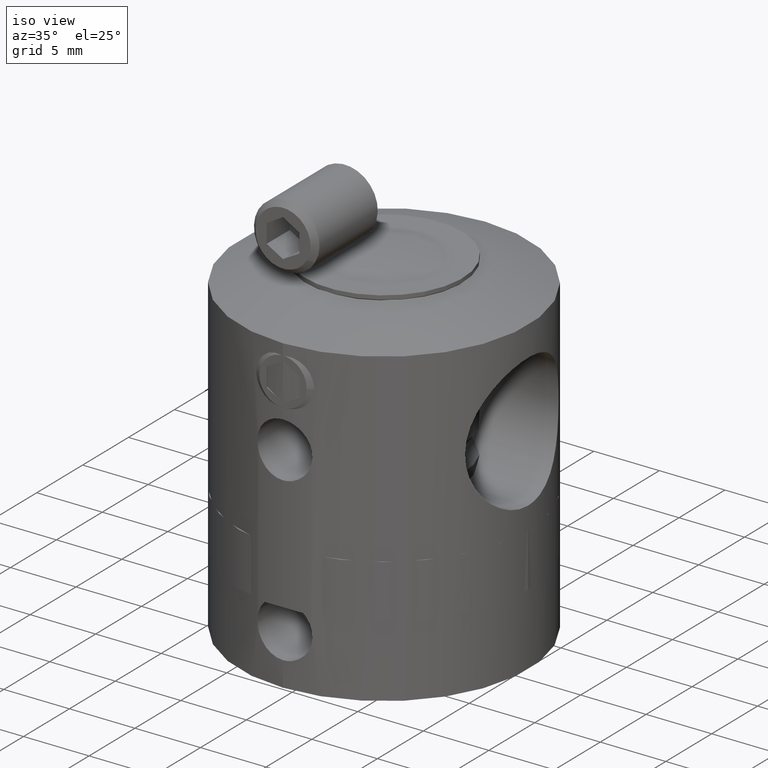
[diagram: clean part render]
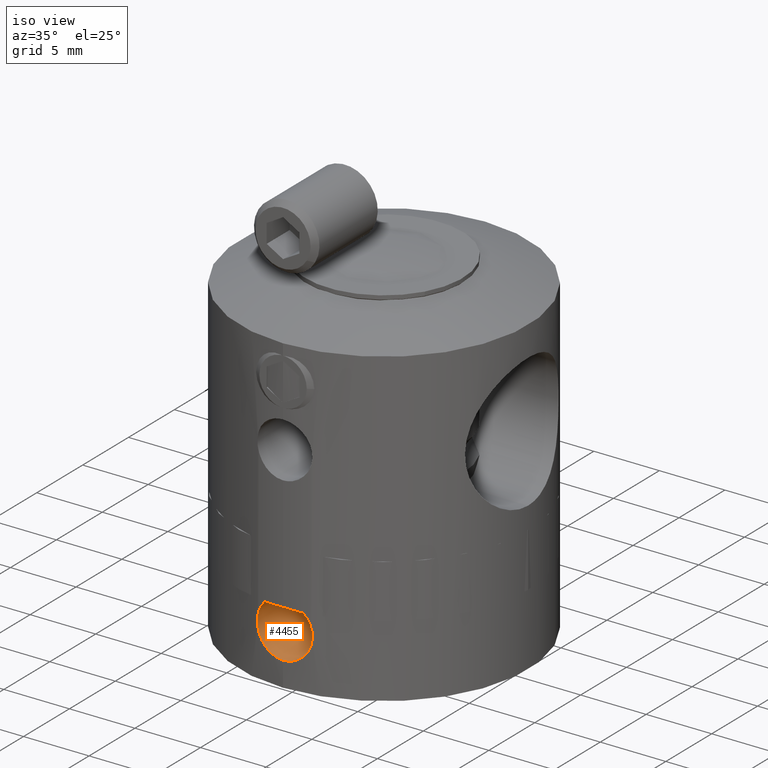
[diagram: same view with one face highlighted and labeled with its STEP entity id]
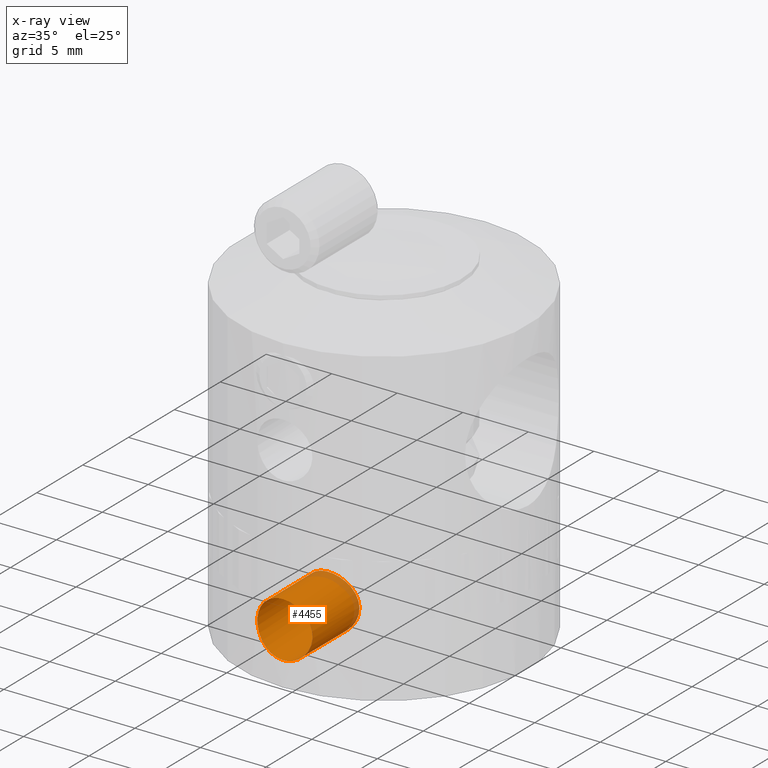
[diagram: x-ray of the same camera — body ghosted, the highlighted face saturated]
A machine part, iso view. The second image highlights one B-rep face of the part: STEP entity #4455.
The next image is the same camera in x-ray: the body ghosted, the highlighted face saturated — about 9% of this face is hidden behind the body in this view.
In plain terms, the highlighted cylindrical surface (bore or boss wall) has radius 2.1 mm, axis along (-0, -1, -0).
Its self-contained STEP definition (entity closure, byte-faithful):
#53 = CARTESIAN_POINT ( 'NONE',  ( 0.1390778096618671689, -11.00000000000000355, -11.10000000000000142 ) ) ;
#86 = AXIS2_PLACEMENT_3D ( 'NONE', #2651, #2634, #3478 ) ;
#223 = CARTESIAN_POINT ( 'NONE',  ( 1.582514419226412228, -10.88600606640208035, -10.38718783353529673 ) ) ;
#242 = CARTESIAN_POINT ( 'NONE',  ( 1.388236100762571201, -5.889415680565724287, -7.418407371126505723 ) ) ;
#248 = CARTESIAN_POINT ( 'NONE',  ( -1.821864279235781092, -10.84835111419837617, -7.946684534337975947 ) ) ;
#260 = CARTESIAN_POINT ( 'NONE',  ( -0.1370078424113408966, -6.050018272139330300, -6.899947358833300015 ) ) ;
#330 = CARTESIAN_POINT ( 'NONE',  ( 2.033263212878624770, -10.81048461628543755, -9.542819864721787226 ) ) ;
#603 = VERTEX_POINT ( 'NONE', #1763 ) ;
#646 = CARTESIAN_POINT ( 'NONE',  ( 1.282722272704272193, -5.913591182268109314, -10.66834261661130689 ) ) ;
#670 = CARTESIAN_POINT ( 'NONE',  ( -0.9319663072103629986, -10.96118774137462815, -7.113117520548483341 ) ) ;
#681 = CARTESIAN_POINT ( 'NONE',  ( -0.2759941719176380870, -6.045243525726740508, -6.913585288518047989 ) ) ;
#698 = CARTESIAN_POINT ( 'NONE',  ( 0.5471799696909567245, -6.026723109777710974, -11.03212607876413465 ) ) ;
#704 = CARTESIAN_POINT ( 'NONE',  ( -0.6781376468636769461, -10.97981628967169243, -10.99225057744506806 ) ) ;
#714 = CARTESIAN_POINT ( 'NONE',  ( -2.100002776509584113, -5.673842466852675237, -8.861644933711625427 ) ) ;
#720 = CARTESIAN_POINT ( 'NONE',  ( -0.2757686476963308042, -10.99736528176723205, -11.08632082349912729 ) ) ;
#729 = CARTESIAN_POINT ( 'NONE',  ( -1.833356115717839074, -5.766598546717018436, -10.06010383873960734 ) ) ;
#754 = CARTESIAN_POINT ( 'NONE',  ( -1.387985884028859696, -5.889482939333429812, -7.418128151566114603 ) ) ;
#867 = B_SPLINE_CURVE_WITH_KNOTS ( 'NONE', 3,
 ( #5302, #5287, #720, #3213, #704, #2781, #3655, #4880, #4857, #1527, #1599, #1120, #4441, #1564, #2029, #1161, #5325, #2802, #248, #4927, #3638, #4103, #4041, #4078, #670, #1104, #1133, #2832, #4058, #4457, #1970, #2435, #3594, #3673, #2370, #4475, #4912, #4895, #1580, #2406, #4500, #2004, #1179, #330, #5081, #2844, #3665, #4089, #223, #2083, #2999, #4618, #2517, #2126, #53, #2579 ),
 .UNSPECIFIED., .T., .F.,
 ( 4, 2, 2, 2, 2, 2, 2, 2, 2, 2, 2, 2, 2, 2, 2, 2, 2, 2, 2, 2, 2, 2, 2, 2, 2, 2, 2, 4 ),
 ( 0.000000000000000000, 0.0004112398612379134888, 0.0008224797224758267607, 0.001233719583713739762, 0.001644959444951652654, 0.002467439167427479089, 0.003289918889903304874, 0.003701158751141219935, 0.004112398612379135864, 0.004523638473617050924, 0.004934878334854965118, 0.005346118196092881046, 0.005757358057330795240, 0.006168597918568711168, 0.006579837779806626229, 0.007402317502282455483, 0.007813557363520372279, 0.008224797224758285605, 0.008636037085996200666, 0.009047276947234115727, 0.009869756669709951052, 0.01028099653094787305, 0.01069223639218579332, 0.01110347625342371358, 0.01151471611466163385, 0.01233719583713747785, 0.01274843569837539811, 0.01315967555961331664 ),
 .UNSPECIFIED. ) ;
#1077 = CARTESIAN_POINT ( 'NONE',  ( 2.086298412965085891, -5.678969576372753458, -9.276648808254051914 ) ) ;
#1099 = CARTESIAN_POINT ( 'NONE',  ( 0.9337387309442389816, -5.978870465411910473, -7.114032744933029839 ) ) ;
#1104 = CARTESIAN_POINT ( 'NONE',  ( -0.6781069570240135791, -10.97981643080941083, -7.007750607009238131 ) ) ;
#1120 = CARTESIAN_POINT ( 'NONE',  ( -2.044350993406146788, -10.80888394006649733, -9.552623370116647195 ) ) ;
#1133 = CARTESIAN_POINT ( 'NONE',  ( -0.5472116004057776539, -10.98720989896580669, -6.967886480110341729 ) ) ;
#1146 = CARTESIAN_POINT ( 'NONE',  ( -1.282838274904412490, -5.913557712218290519, -7.331785559734434798 ) ) ;
#1161 = CARTESIAN_POINT ( 'NONE',  ( -2.032659403802354436, -10.81059865162793621, -8.454853891728369319 ) ) ;
#1171 = CARTESIAN_POINT ( 'NONE',  ( -2.031790601906988236, -5.698697821966189458, -8.451593586440516503 ) ) ;
#1179 = CARTESIAN_POINT ( 'NONE',  ( 2.086595700918373542, -10.80031737092473421, -9.273735418408087128 ) ) ;
#1185 = CARTESIAN_POINT ( 'NONE',  ( -0.9348990817558912036, -5.978705317257419161, -10.88545226405776489 ) ) ;
#1504 = CARTESIAN_POINT ( 'NONE',  ( 1.055254178886850136, -5.958387006382904083, -10.82076416189327794 ) ) ;
#1519 = CARTESIAN_POINT ( 'NONE',  ( 2.086199626509825489, -5.679005098974669430, -8.722931967104218032 ) ) ;
#1527 = CARTESIAN_POINT ( 'NONE',  ( -1.678338565524258641, -10.87295724076965264, -10.29145425403354608 ) ) ;
#1540 = CARTESIAN_POINT ( 'NONE',  ( 2.031906570704638870, -5.698657052783162591, -9.548207368589965327 ) ) ;
#1564 = CARTESIAN_POINT ( 'NONE',  ( -2.100080576060141979, -10.79766926613581823, -8.863934974792822885 ) ) ;
#1572 = CARTESIAN_POINT ( 'NONE',  ( -1.056207286875700424, -5.958209884054677552, -7.179824287212644762 ) ) ;
#1580 = CARTESIAN_POINT ( 'NONE',  ( 1.885922255304093076, -10.83725952041489293, -8.066019305492174496 ) ) ;
#1589 = CARTESIAN_POINT ( 'NONE',  ( -2.099997222644936823, -5.673844522446161776, -9.138439339059265976 ) ) ;
#1599 = CARTESIAN_POINT ( 'NONE',  ( -1.834681010053395678, -10.84644128760293569, -10.05769048629040796 ) ) ;
#1612 = CARTESIAN_POINT ( 'NONE',  ( -1.677628477259460515, -5.816140520493007671, -10.29216412684446702 ) ) ;
#1614 = EDGE_LOOP ( 'NONE', ( #5283 ) ) ;
#1763 = CARTESIAN_POINT ( 'NONE',  ( 0.000000000000000000, -6.049999999999999822, -11.09999999999999609 ) ) ;
#1909 = CARTESIAN_POINT ( 'NONE',  ( 2.099901838711680124, -5.673879825887594208, -9.139667955912132769 ) ) ;
#1926 = CARTESIAN_POINT ( 'NONE',  ( 2.100097112875726868, -5.673807551136180294, -8.863299646582754932 ) ) ;
#1946 = CARTESIAN_POINT ( 'NONE',  ( 1.677515665356957619, -5.816156680805213419, -10.29218480352837695 ) ) ;
#1964 = CARTESIAN_POINT ( 'NONE',  ( -0.5484315143079885324, -6.026637946847929861, -6.968123526063984663 ) ) ;
#1970 = CARTESIAN_POINT ( 'NONE',  ( 0.5505417721006465870, -10.98913941872515920, -6.955053806371497060 ) ) ;
#1994 = CARTESIAN_POINT ( 'NONE',  ( -1.832674874622926442, -5.766831447283050416, -7.938154285827224044 ) ) ;
#2004 = CARTESIAN_POINT ( 'NONE',  ( 2.100101276507924997, -10.79766524018844898, -9.137153442652046209 ) ) ;
#2020 = CARTESIAN_POINT ( 'NONE',  ( -0.1399094874859273530, -6.049999999999998934, -11.09999999999999787 ) ) ;
#2029 = CARTESIAN_POINT ( 'NONE',  ( -2.086371845620103915, -10.80036110415988482, -8.724425957257206932 ) ) ;
#2037 = CARTESIAN_POINT ( 'NONE',  ( -0.6806531321449275085, -6.012958080460188093, -10.99140097589859444 ) ) ;
#2083 = CARTESIAN_POINT ( 'NONE',  ( 1.293096815573841152, -10.92546660261073121, -10.67704159633094463 ) ) ;
#2126 = CARTESIAN_POINT ( 'NONE',  ( 0.2763807230148072058, -10.99736402501771515, -11.08631854803060968 ) ) ;
#2348 = CARTESIAN_POINT ( 'NONE',  ( 1.992076325838970208, -5.712904946180972665, -8.321180947084144464 ) ) ;
#2370 = CARTESIAN_POINT ( 'NONE',  ( 1.386736755965818357, -10.91267702308485887, -7.417060461664108928 ) ) ;
#2378 = CARTESIAN_POINT ( 'NONE',  ( -0.6798199956223249796, -6.013045120364453489, -7.008341673257475257 ) ) ;
#2406 = CARTESIAN_POINT ( 'NONE',  ( 2.044856290180034897, -10.80879962882139722, -8.448045730545238996 ) ) ;
#2435 = CARTESIAN_POINT ( 'NONE',  ( 0.9298327460409486767, -10.96136311852415801, -7.112107958911355610 ) ) ;
#2445 = CARTESIAN_POINT ( 'NONE',  ( -2.086446433802004563, -5.678914961500180603, -9.275580519989469863 ) ) ;
#2517 = CARTESIAN_POINT ( 'NONE',  ( 0.5474969020630485739, -10.98720387291686862, -11.03208231382050641 ) ) ;
#2579 = CARTESIAN_POINT ( 'NONE',  ( -5.421010862427522170E-17, -11.00000000000000000, -11.09999999999999787 ) ) ;
#2634 = DIRECTION ( 'NONE',  ( -0.000000000000000000, -1.000000000000000000, -0.000000000000000000 ) ) ;
#2651 = CARTESIAN_POINT ( 'NONE',  ( 0.000000000000000000, -10.99999999999999645, -9.000000000000003553 ) ) ;
#2752 = EDGE_CURVE ( 'NONE', #603, #603, #5034, .T. ) ;
#2756 = CARTESIAN_POINT ( 'NONE',  ( 1.885730099252477254, -5.748884500913227669, -8.065556107974956035 ) ) ;
#2781 = CARTESIAN_POINT ( 'NONE',  ( -0.9322983872529648774, -10.96116125874258174, -10.88673070377028118 ) ) ;
#2802 = CARTESIAN_POINT ( 'NONE',  ( -1.887465525486915929, -10.83698959357260527, -8.069159390277093280 ) ) ;
#2832 = CARTESIAN_POINT ( 'NONE',  ( -0.2774242944193053839, -10.99732956950990115, -6.913864420944086042 ) ) ;
#2844 = CARTESIAN_POINT ( 'NONE',  ( 1.887604345443003817, -10.83696457773361743, -9.930492876428047566 ) ) ;
#2866 = CARTESIAN_POINT ( 'NONE',  ( -2.846030702774449139E-16, -6.049999999999999822, -11.09999999999999787 ) ) ;
#2965 = FACE_OUTER_BOUND ( 'NONE', #4438, .T. ) ;
#2999 = CARTESIAN_POINT ( 'NONE',  ( 1.059417076819560322, -10.95179245714164651, -10.83370096287937479 ) ) ;
#3149 = CARTESIAN_POINT ( 'NONE',  ( 0.6811580974801476618, -6.012896895511600448, -10.99121495824429040 ) ) ;
#3150 = FACE_OUTER_BOUND ( 'NONE', #1614, .T. ) ;
#3169 = CARTESIAN_POINT ( 'NONE',  ( 1.056540751299541947, -5.958152591912580398, -7.180007939861434707 ) ) ;
#3213 = CARTESIAN_POINT ( 'NONE',  ( -0.5445907593099171828, -10.98733418043456922, -11.03278228802117056 ) ) ;
#3225 = CARTESIAN_POINT ( 'NONE',  ( -2.085968176298856669, -5.679090304225507424, -8.721325616715200013 ) ) ;
#3246 = CARTESIAN_POINT ( 'NONE',  ( -1.281667734744786236, -5.913812107055512968, -10.66911211653557601 ) ) ;
#3263 = CARTESIAN_POINT ( 'NONE',  ( -0.9334016992415116176, -5.978932021175665135, -7.113834740860747630 ) ) ;
#3478 = DIRECTION ( 'NONE',  ( 0.000000000000000000, 0.000000000000000000, -1.000000000000000000 ) ) ;
#3572 = CARTESIAN_POINT ( 'NONE',  ( 1.833375222520310599, -5.766588150094817067, -10.05988853332625332 ) ) ;
#3589 = CARTESIAN_POINT ( 'NONE',  ( 1.581308756655631864, -5.840537573381246794, -7.611440555362619875 ) ) ;
#3594 = CARTESIAN_POINT ( 'NONE',  ( 1.052429674837027873, -10.95014267461733937, -7.177551404401405932 ) ) ;
#3625 = CARTESIAN_POINT ( 'NONE',  ( 1.283353766588672729, -5.913447706495243317, -7.332171301390130402 ) ) ;
#3638 = CARTESIAN_POINT ( 'NONE',  ( -1.582902319642925049, -10.88596003962311975, -7.613101617243329677 ) ) ;
#3648 = CARTESIAN_POINT ( 'NONE',  ( -2.032141678610742019, -5.698572984452232149, -9.547360523033843194 ) ) ;
#3655 = CARTESIAN_POINT ( 'NONE',  ( -1.052791956378938742, -10.95010395737945252, -10.82220585969553284 ) ) ;
#3665 = CARTESIAN_POINT ( 'NONE',  ( 1.823215479922152271, -10.84812657183626783, -10.05107818475415904 ) ) ;
#3673 = CARTESIAN_POINT ( 'NONE',  ( 1.281199630984558802, -10.92573843364916009, -7.330432807688803010 ) ) ;
#3684 = CARTESIAN_POINT ( 'NONE',  ( -1.054968530237155866, -5.958429929104765321, -10.82089231973254329 ) ) ;
#3856 = EDGE_CURVE ( 'NONE', #4007, #4007, #867, .T. ) ;
#4007 = VERTEX_POINT ( 'NONE', #4290 ) ;
#4012 = CARTESIAN_POINT ( 'NONE',  ( 0.2777502533098673565, -6.045159907950944600, -6.913826621524063576 ) ) ;
#4041 = CARTESIAN_POINT ( 'NONE',  ( -1.281990447053926729, -10.92563686889392649, -7.331115581257310332 ) ) ;
#4052 = CARTESIAN_POINT ( 'NONE',  ( 1.669091256392895239, -5.815745814966070348, -7.718326810072279720 ) ) ;
#4058 = CARTESIAN_POINT ( 'NONE',  ( -0.1380551056559362610, -10.99998945361097569, -6.900055242994412197 ) ) ;
#4067 = CARTESIAN_POINT ( 'NONE',  ( -1.679013435041563085, -5.815794899478619939, -7.709183467151893510 ) ) ;
#4073 = CYLINDRICAL_SURFACE ( 'NONE', #86, 2.099999999999992539 ) ;
#4078 = CARTESIAN_POINT ( 'NONE',  ( -1.054892582810820212, -10.94989690070195998, -7.179045209734632671 ) ) ;
#4089 = CARTESIAN_POINT ( 'NONE',  ( 1.670711584421387341, -10.87265779864739201, -10.27968857085388166 ) ) ;
#4103 = CARTESIAN_POINT ( 'NONE',  ( -1.387671354983934568, -10.91256495734889675, -7.417775272541513587 ) ) ;
#4113 = CARTESIAN_POINT ( 'NONE',  ( -1.991284098162775074, -5.713175649488976049, -9.680838702918435956 ) ) ;
#4290 = CARTESIAN_POINT ( 'NONE',  ( 0.000000000000000000, -10.99999999999999822, -11.09999999999999609 ) ) ;
#4395 = CARTESIAN_POINT ( 'NONE',  ( 1.389485210169927321, -5.889112003224027170, -10.58043694724463357 ) ) ;
#4435 = CARTESIAN_POINT ( 'NONE',  ( 1.990986049021030047, -5.713278432952918706, -9.681638947691940444 ) ) ;
#4438 = EDGE_LOOP ( 'NONE', ( #4626 ) ) ;
#4441 = CARTESIAN_POINT ( 'NONE',  ( -2.099837753199914836, -10.79771649180664284, -9.275843938405992972 ) ) ;
#4450 = CARTESIAN_POINT ( 'NONE',  ( 0.5499007699519290471, -6.026500863612104020, -6.968529175330919756 ) ) ;
#4455 = ADVANCED_FACE ( 'NONE', ( #3150, #2965 ), #4073, .F. ) ;
#4457 = CARTESIAN_POINT ( 'NONE',  ( 0.2735815360057495260, -11.00002099589624116, -6.899890021487316005 ) ) ;
#4467 = CARTESIAN_POINT ( 'NONE',  ( 0.9350300702962209831, -5.978680807457250168, -10.88537320744207904 ) ) ;
#4475 = CARTESIAN_POINT ( 'NONE',  ( 1.580486696390908996, -10.88630426008028351, -7.610468346922246496 ) ) ;
#4500 = CARTESIAN_POINT ( 'NONE',  ( 2.099795748563274334, -10.79772466112062546, -8.721067090500651986 ) ) ;
#4510 = CARTESIAN_POINT ( 'NONE',  ( -0.2772861503185984344, -6.045152451168054775, -11.08614745265201762 ) ) ;
#4528 = CARTESIAN_POINT ( 'NONE',  ( -1.991803295099964233, -5.712998789426672275, -8.320461176367230038 ) ) ;
#4618 = CARTESIAN_POINT ( 'NONE',  ( 0.6806038088607760939, -10.97965432502793348, -10.99135240385638923 ) ) ;
#4626 = ORIENTED_EDGE ( 'NONE', *, *, #3856, .F. ) ;
#4816 = CARTESIAN_POINT ( 'NONE',  ( -2.846030702774449139E-16, -6.049999999999999822, -11.09999999999999787 ) ) ;
#4830 = CARTESIAN_POINT ( 'NONE',  ( 2.032092219697879010, -5.698590089353100296, -8.452645647550122376 ) ) ;
#4848 = CARTESIAN_POINT ( 'NONE',  ( 0.1386168427396119451, -6.049981620882074473, -6.900052949366974886 ) ) ;
#4857 = CARTESIAN_POINT ( 'NONE',  ( -1.388537688308395968, -10.91244555373267389, -10.58133857723259474 ) ) ;
#4868 = CARTESIAN_POINT ( 'NONE',  ( 0.6809899078971618502, -6.012903857969324584, -7.008770919710036296 ) ) ;
#4880 = CARTESIAN_POINT ( 'NONE',  ( -1.280823970048206251, -10.92577857814184128, -10.66981886930135737 ) ) ;
#4895 = CARTESIAN_POINT ( 'NONE',  ( 1.821258053761724227, -10.84845420623088330, -7.945612156517057656 ) ) ;
#4912 = CARTESIAN_POINT ( 'NONE',  ( 1.669073131240823349, -10.87290827909674107, -7.718239684868305694 ) ) ;
#4927 = CARTESIAN_POINT ( 'NONE',  ( -1.670043013049527181, -10.87275805320107658, -7.719523816417274809 ) ) ;
#4942 = CARTESIAN_POINT ( 'NONE',  ( -0.5468863765269961208, -6.026746307767635535, -11.03219440372573956 ) ) ;
#5034 = B_SPLINE_CURVE_WITH_KNOTS ( 'NONE', 3,
 ( #4816, #5223, #5294, #698, #3149, #4467, #1504, #646, #4395, #1946, #3572, #4435, #1540, #1077, #1909, #1926, #1519, #4830, #2348, #2756, #5244, #4052, #3589, #242, #3625, #3169, #1099, #4868, #4450, #4012, #4848, #260, #681, #1964, #2378, #3263, #1572, #1146, #754, #4067, #1994, #4528, #1171, #3225, #714, #1589, #2445, #3648, #4113, #729, #1612, #5354, #3246, #3684, #1185, #2037, #4942, #4510, #2020, #2866 ),
 .UNSPECIFIED., .T., .F.,
 ( 4, 2, 2, 2, 2, 2, 2, 2, 2, 2, 2, 2, 2, 2, 2, 2, 2, 2, 2, 2, 2, 2, 2, 2, 2, 2, 2, 2, 2, 4 ),
 ( 0.000000000000000000, 0.0004135417857046661677, 0.0008270835714093323354, 0.001240625357113998503, 0.001654167142818664671, 0.002481250714227997006, 0.002894792499932662740, 0.003308334285637328474, 0.003721876071341993775, 0.004135417857046659075, 0.004548959642751324375, 0.004962501428455987941, 0.005376043214160651507, 0.005789584999865314205, 0.006203126785569977771, 0.006616668571274640469, 0.007030210356979304034, 0.007443752142683966733, 0.007857293928388629431, 0.008270835714093293864, 0.009097919285502620995, 0.009511461071207285428, 0.009925002856911949861, 0.01033854464261661603, 0.01075208642832128046, 0.01157916999973060933, 0.01199271178543527550, 0.01240625357113993993, 0.01281979535684460436, 0.01323333714254926706 ),
 .UNSPECIFIED. ) ;
#5081 = CARTESIAN_POINT ( 'NONE',  ( 1.992727468485251618, -10.81812777981166462, -9.676686333808367735 ) ) ;
#5223 = CARTESIAN_POINT ( 'NONE',  ( 0.1399094874859282966, -6.050000000000001599, -11.09999999999999787 ) ) ;
#5244 = CARTESIAN_POINT ( 'NONE',  ( 1.820668057691347430, -5.770089499320176785, -7.944670851511660636 ) ) ;
#5283 = ORIENTED_EDGE ( 'NONE', *, *, #2752, .F. ) ;
#5287 = CARTESIAN_POINT ( 'NONE',  ( -0.1390778096618653092, -10.99999999999999645, -11.09999999999999254 ) ) ;
#5294 = CARTESIAN_POINT ( 'NONE',  ( 0.2772732166670282550, -6.045156484697385757, -11.08615960140718570 ) ) ;
#5302 = CARTESIAN_POINT ( 'NONE',  ( -5.421010862427522170E-17, -11.00000000000000000, -11.09999999999999787 ) ) ;
#5325 = CARTESIAN_POINT ( 'NONE',  ( -1.992922399063346006, -10.81809270954978075, -8.323796878207067707 ) ) ;
#5354 = CARTESIAN_POINT ( 'NONE',  ( -1.388895160922097416, -5.889255232830834963, -10.58098121164392147 ) ) ;